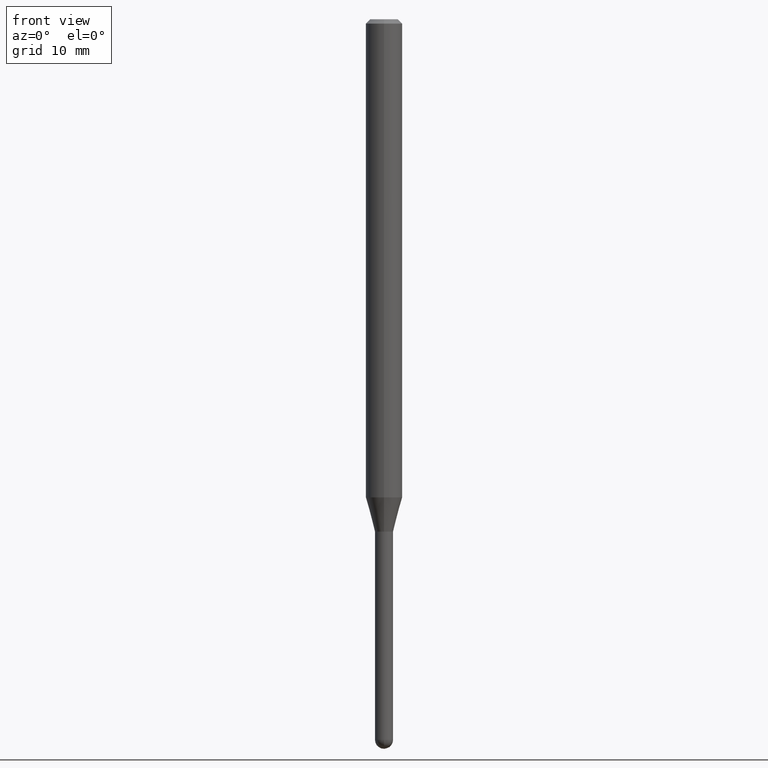
[diagram: clean part render]
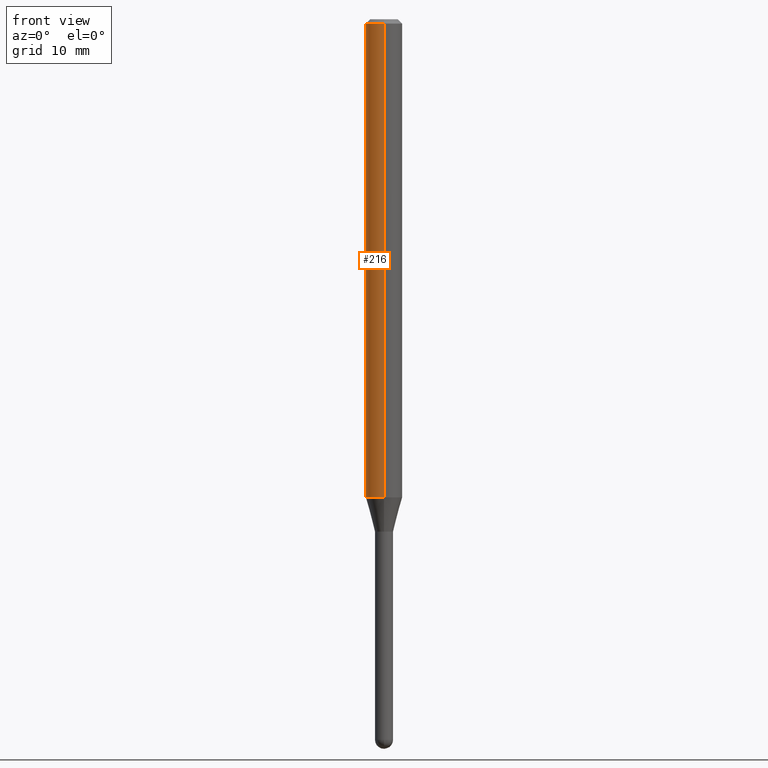
[diagram: same view with one face highlighted and labeled with its STEP entity id]
A machine part, front view. The second image highlights one B-rep face of the part: STEP entity #216.
In plain terms, the highlighted cylindrical surface (edge-blend (fillet) strip) has radius 1.5875 mm, axis along (-0, 0, 1).
Its self-contained STEP definition (entity closure, byte-faithful):
#9 = EDGE_CURVE ( 'NONE', #280, #169, #93, .T. ) ;
#13 = DIRECTION ( 'NONE',  ( -6.982962677686265922E-15, -1.000000000000000000, 4.370956789862821150E-15 ) ) ;
#14 = ORIENTED_EDGE ( 'NONE', *, *, #9, .F. ) ;
#18 = CARTESIAN_POINT ( 'NONE',  ( -4.364351673553912750E-16, -0.06250000000000005551, -0.01499999999999984852 ) ) ;
#25 = VERTEX_POINT ( 'NONE', #18 ) ;
#46 = VERTEX_POINT ( 'NONE', #228 ) ;
#92 = CARTESIAN_POINT ( 'NONE',  ( 4.006786741925258835E-29, -5.720538463129382758E-15, -1.638440399561583716 ) ) ;
#93 = LINE ( 'NONE', #251, #478 ) ;
#104 = EDGE_LOOP ( 'NONE', ( #14, #166, #234, #463 ) ) ;
#155 = EDGE_CURVE ( 'NONE', #46, #25, #401, .T. ) ;
#157 = DIRECTION ( 'NONE',  ( -2.445488247846794211E-29, 3.491453497277101165E-15, 1.000000000000000000 ) ) ;
#164 = CIRCLE ( 'NONE', #507, 0.06250000000000000000 ) ;
#166 = ORIENTED_EDGE ( 'NONE', *, *, #283, .T. ) ;
#169 = VERTEX_POINT ( 'NONE', #247 ) ;
#199 = DIRECTION ( 'NONE',  ( -2.445488247846794211E-29, 3.491453497277101559E-15, 1.000000000000000000 ) ) ;
#213 = CARTESIAN_POINT ( 'NONE',  ( 4.440892098501024536E-16, 0.06249999999999425460, -1.638440399561583938 ) ) ;
#216 = ADVANCED_FACE ( 'NONE', ( #323 ), #363, .T. ) ;
#221 = CIRCLE ( 'NONE', #306, 0.06250000000000000000 ) ;
#228 = CARTESIAN_POINT ( 'NONE',  ( -4.364351673553516840E-16, -0.06250000000000574540, -1.638440399561583494 ) ) ;
#234 = ORIENTED_EDGE ( 'NONE', *, *, #155, .T. ) ;
#238 = CARTESIAN_POINT ( 'NONE',  ( 3.668232371770207414E-31, -5.237180245915674822E-17, -0.01500000000000006710 ) ) ;
#247 = CARTESIAN_POINT ( 'NONE',  ( 4.440892098501028481E-16, 0.06249999999999995143, -0.01500000000000028394 ) ) ;
#251 = CARTESIAN_POINT ( 'NONE',  ( 4.440892098500625669E-16, 0.06250000000000000000, -2.182158435798188228E-16 ) ) ;
#279 = CARTESIAN_POINT ( 'NONE',  ( -4.364351673553916201E-16, -0.06250000000000000000, 2.182158435798188228E-16 ) ) ;
#280 = VERTEX_POINT ( 'NONE', #213 ) ;
#281 = DIRECTION ( 'NONE',  ( -6.982962677686265922E-15, -1.000000000000000000, 3.483106191921935554E-15 ) ) ;
#283 = EDGE_CURVE ( 'NONE', #280, #46, #221, .T. ) ;
#306 = AXIS2_PLACEMENT_3D ( 'NONE', #92, #372, #13 ) ;
#323 = FACE_OUTER_BOUND ( 'NONE', #104, .T. ) ;
#336 = VECTOR ( 'NONE', #199, 39.37007874015748143 ) ;
#363 = CYLINDRICAL_SURFACE ( 'NONE', #381, 0.06250000000000000000 ) ;
#372 = DIRECTION ( 'NONE',  ( -2.445488247846794211E-29, 3.491453497277101165E-15, 1.000000000000000000 ) ) ;
#374 = DIRECTION ( 'NONE',  ( -2.445488247846794211E-29, 3.491453497277101559E-15, 1.000000000000000000 ) ) ;
#381 = AXIS2_PLACEMENT_3D ( 'NONE', #484, #157, #482 ) ;
#401 = LINE ( 'NONE', #279, #336 ) ;
#427 = EDGE_CURVE ( 'NONE', #169, #25, #164, .T. ) ;
#451 = DIRECTION ( 'NONE',  ( -2.445488247846794211E-29, 3.491453497277101165E-15, 1.000000000000000000 ) ) ;
#463 = ORIENTED_EDGE ( 'NONE', *, *, #427, .F. ) ;
#478 = VECTOR ( 'NONE', #374, 39.37007874015748143 ) ;
#482 = DIRECTION ( 'NONE',  ( -6.982962677686265922E-15, -1.000000000000000000, 3.491453497277101165E-15 ) ) ;
#484 = CARTESIAN_POINT ( 'NONE',  ( 0.000000000000000000, 0.000000000000000000, 0.000000000000000000 ) ) ;
#507 = AXIS2_PLACEMENT_3D ( 'NONE', #238, #451, #281 ) ;